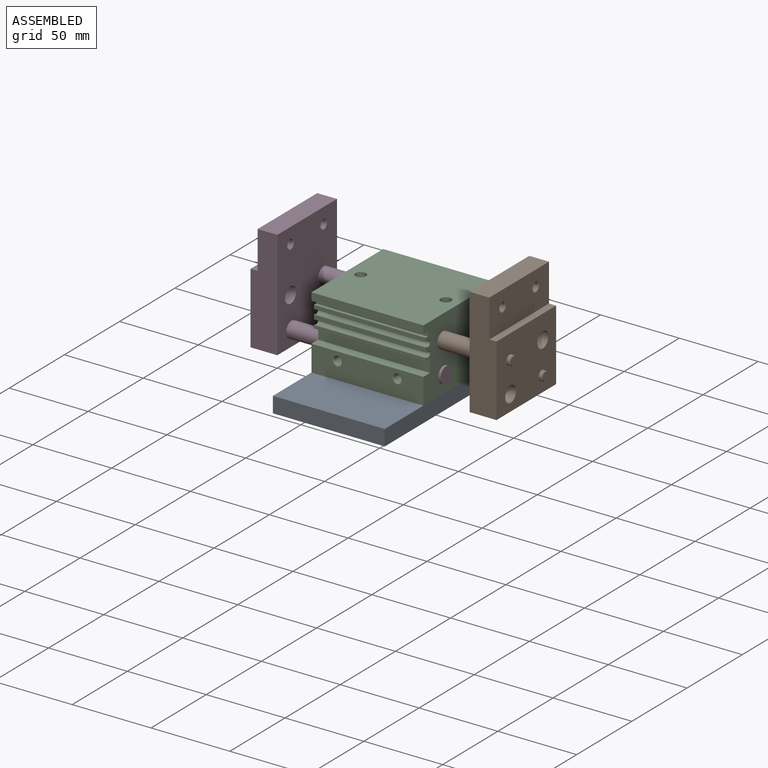
[diagram: assembled view]
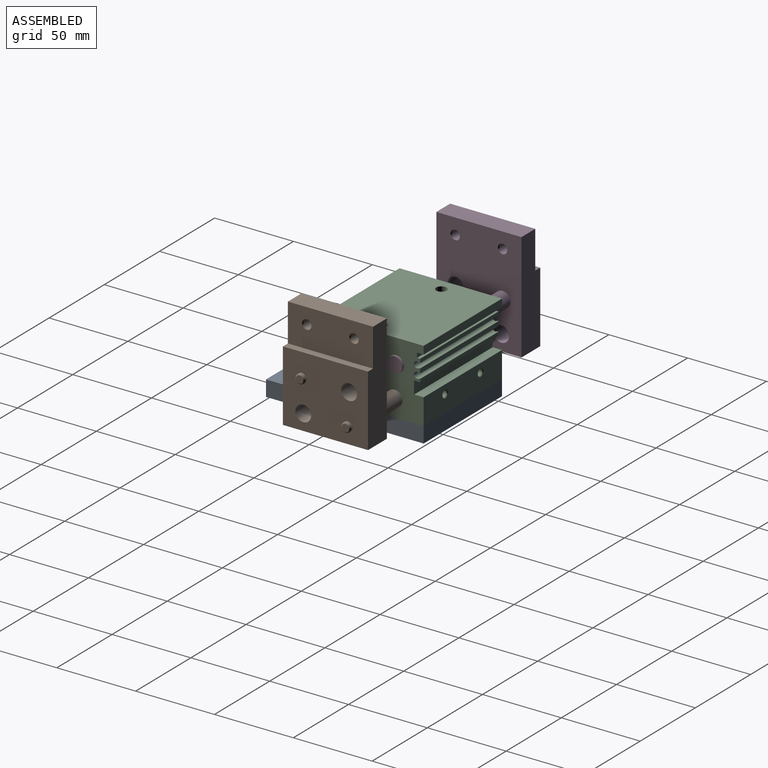
[diagram: assembled view, second angle]
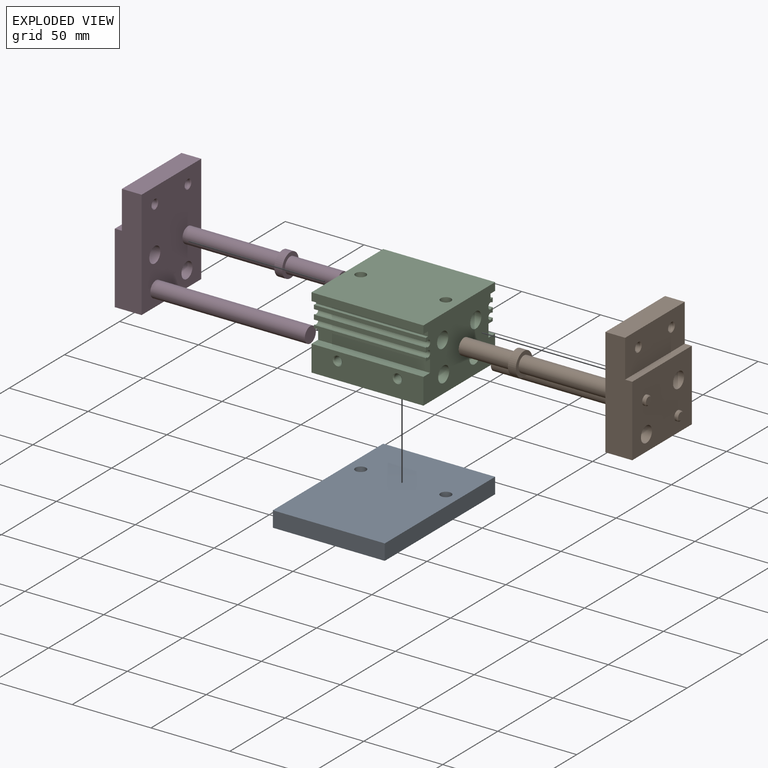
[diagram: exploded view]
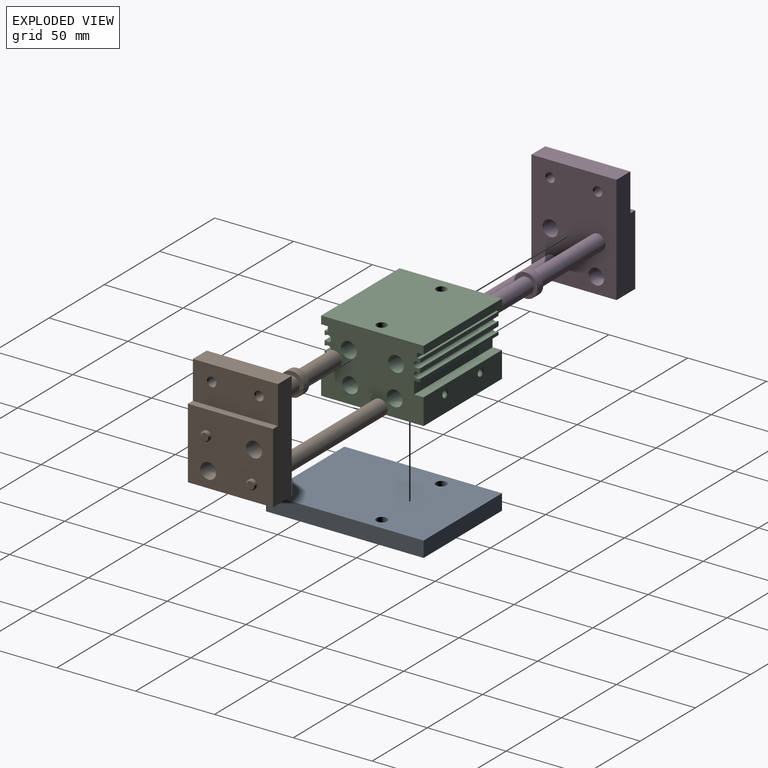
[diagram: exploded view, second angle]
ASSEMBLY  parts=4 mates=3
PART A: 8 faces, bbox 100x10x71 mm
  f0: plane 71x10mm, normal (-1,0,0), area 710mm2, adj f1,f3,f4,f5
  f1: plane 100x10mm, normal (0,0,-1), area 1000mm2, adj f0,f2,f4,f5
  f2: plane 71x10mm, normal (1,0,0), area 710mm2, adj f1,f3,f4,f5
  f3: plane 100x10mm, normal (0,0,1), area 1000mm2, adj f0,f2,f4,f5
  f4: plane 100x71mm, normal (0,-1,0), area 7027.4mm2, adj f0,f1,f2,f3,f6,f7
  f5: plane 100x71mm, normal (0,1,0), area 7027.4mm2, adj f0,f1,f2,f3,f6,f7
  f6: cylinder r=3.4mm len=10mm, axis (0,-1,0), area 213.6mm2, adj f4,f5
  f7: cylinder r=3.4mm len=10mm, axis (0,-1,0), area 213.6mm2, adj f4,f5
PART B: 30 faces, bbox 117x54x69 mm
  f0: plane 54x45mm, normal (1,0,0), area 2216.4mm2, adj f1,f4,f8,f9,f10,f11,f14,f17
  f1: cylinder r=3mm len=6mm, axis (-1,0,0), area 26.1mm2, adj f0,f3
  f2: cylinder r=5mm len=60mm, axis (-1,0,0), area 1885mm2, adj f5,f22
  f3: cone r=3mm half-angle=45deg, axis (-1,0,0), area 14.7mm2, adj f1,f26
  f4: plane 54x17mm, normal (0,0,-1), area 918mm2, adj f0,f5,f9,f10
  f5: plane 69x54mm, normal (-1,0,0), area 3355.3mm2, adj f2,f4,f6,f9,f10,f11,f13,f17
  f6: plane 54x12.5mm, normal (0,0,1), area 675mm2, adj f5,f7,f9,f10
  f7: plane 54x24mm, normal (1,0,0), area 1239.5mm2, adj f6,f8,f9,f10,f24,f29
  f8: plane 54x4.5mm, normal (0,0,1), area 243mm2, adj f0,f7,f9,f10
  f9: plane 69x17mm, normal (0,-1,0), area 1065mm2, adj f0,f4,f5,f6,f7,f8
  f10: plane 69x17mm, normal (0,1,0), area 1065mm2, adj f0,f4,f5,f6,f7,f8
  f11: cylinder r=5mm len=17mm, axis (-1,0,0), area 534.1mm2, adj f0,f5
  f12: plane 10x10mm, normal (-1,0,0), area 78.5mm2, adj f13
  f13: cylinder r=5mm len=98mm, axis (-1,0,0), area 3078.8mm2, adj f5,f12
  f14: cylinder r=3mm len=6mm, axis (-1,0,0), area 26.1mm2, adj f0,f15
  f15: cone r=3mm half-angle=45deg, axis (-1,0,0), area 14.7mm2, adj f14,f16
  f16: plane 4.77x4.77mm, normal (1,0,0), area 17.9mm2, adj f15
  f17: cylinder r=5mm len=17mm, axis (-1,0,0), area 534.1mm2, adj f0,f5
  f18: plane 10x10mm, normal (-1,0,0), area 78.5mm2, adj f19
  f19: cylinder r=5mm len=33mm, axis (-1,0,0), area 1036.7mm2, adj f18,f20
  f20: plane 15x15mm, normal (-1,0,0), area 98.2mm2, adj f19,f21
  f21: cylinder r=7.5mm len=15mm, axis (-1,0,0), area 235.6mm2, adj f20,f22
  f22: plane 15x15mm, normal (1,0,0), area 98.2mm2, adj f2,f21
  f23: cone r=3mm half-angle=45deg, axis (-1,0,0), area 13.1mm2, adj f5,f25
  f24: cone r=2.46mm half-angle=45deg, axis (1,0,0), area 13.1mm2, adj f7,f25
  f25: cylinder r=2.46mm len=11.42mm, axis (-1,0,0), area 176.4mm2, adj f23,f24
  f26: plane 4.77x4.77mm, normal (1,0,0), area 17.9mm2, adj f3
  f27: cone r=3mm half-angle=45deg, axis (-1,0,0), area 13.1mm2, adj f5,f28
  f28: cylinder r=2.46mm len=11.42mm, axis (-1,0,0), area 176.4mm2, adj f27,f29
  f29: cone r=2.46mm half-angle=45deg, axis (1,0,0), area 13.1mm2, adj f7,f28
PART C: 85 faces, bbox 71x65x46 mm
  f0: plane 15x15mm, normal (-1,0,0), area 98.2mm2, adj f5,f19
  f1: plane 71x0.74mm, normal (0,0,-1), area 52.3mm2, adj f2,f3,f13,f14
  f2: plane 71x2.45mm, normal (0,1,0), area 173.9mm2, adj f1,f12,f13,f14
  f3: cylinder r=2mm len=71mm, axis (1,0,0), area 640.4mm2, adj f1,f13,f14,f84
  f4: cylinder r=5mm len=11.5mm, axis (1,0,0), area 361.3mm2, adj f14,f18
  f5: cylinder r=5mm len=34.5mm, axis (1,0,0), area 1083.8mm2, adj f0,f13
  f6: cylinder r=5mm len=34.5mm, axis (1,0,0), area 1083.8mm2, adj f14,f15
  f7: cylinder r=5mm len=71mm, axis (1,0,0), area 2230.5mm2, adj f13,f14
  f8: cylinder r=5mm len=71mm, axis (1,0,0), area 2230.5mm2, adj f13,f14
  f9: plane 71x5mm, normal (0,1,0), area 355mm2, adj f10,f13,f14,f55
  f10: plane 71x4.2mm, normal (0,0,-1), area 298.2mm2, adj f9,f11,f13,f14
  f11: plane 71x3mm, normal (0,1,0), area 213mm2, adj f10,f12,f13,f14
  f12: plane 71x2mm, normal (0,0,1), area 142mm2, adj f2,f11,f13,f14
  f13: plane 65x46mm, normal (1,0,0), area 2442.2mm2, adj f1,f2,f3,f5,f7,f8,f9,f10
  f14: plane 65x46mm, normal (-1,0,0), area 2442.2mm2, adj f1,f2,f3,f4,f6,f7,f8,f9
  f15: plane 15x15mm, normal (1,0,0), area 98.2mm2, adj f6,f16
  f16: cylinder r=7.5mm len=25mm, axis (-1,0,0), area 1178.1mm2, adj f15,f17
  f17: plane 15x15mm, normal (-1,0,0), area 98.2mm2, adj f16,f57
  f18: plane 15x15mm, normal (1,0,0), area 98.2mm2, adj f4,f19
  f19: cylinder r=7.5mm len=25mm, axis (-1,0,0), area 1178.1mm2, adj f0,f18
  f20: cylinder r=3.3mm len=46mm, axis (0,0,-1), area 953.8mm2, adj f55,f58
  f21: cylinder r=3.3mm len=46mm, axis (0,0,-1), area 953.8mm2, adj f55,f58
  f22: cone r=3mm half-angle=45deg, axis (0,0,-1), area 13.1mm2, adj f23,f58
  f23: cylinder r=2.46mm len=11.46mm, axis (0,0,-1), area 177mm2, adj f22,f24
  f24: cone r=2.46mm half-angle=60deg, axis (0,0,-1), area 21.9mm2, adj f23
  f25: cone r=3mm half-angle=45deg, axis (0,0,-1), area 13.1mm2, adj f26,f58
  f26: cylinder r=2.46mm len=11.46mm, axis (0,0,-1), area 177mm2, adj f25,f27
  f27: cone r=2.46mm half-angle=60deg, axis (0,0,-1), area 21.9mm2, adj f26
  f28: cone r=3mm half-angle=45deg, axis (0,0,-1), area 13.1mm2, adj f29,f58
  f29: cylinder r=2.46mm len=11.46mm, axis (0,0,-1), area 177mm2, adj f28,f30
  f30: cone r=2.46mm half-angle=60deg, axis (0,0,-1), area 21.9mm2, adj f29
  f31: cone r=3mm half-angle=45deg, axis (0,0,-1), area 13.1mm2, adj f32,f58
  f32: cylinder r=2.46mm len=11.46mm, axis (0,0,-1), area 177mm2, adj f31,f33
  f33: cone r=2.46mm half-angle=60deg, axis (0,0,-1), area 21.9mm2, adj f32
  f34: cylinder r=2mm len=4mm, axis (0,0,1), area 50.3mm2, adj f35,f58
  f35: plane 4x4mm, normal (0,0,-1), area 12.6mm2, adj f34
  f36: plane 4x1mm, normal (1,0,0), area 4mm2, adj f37,f39,f40,f58
  f37: cylinder r=2mm len=4mm, axis (0,0,1), area 25.1mm2, adj f36,f38,f40,f58
  f38: plane 4x1mm, normal (-1,0,0), area 4mm2, adj f37,f39,f40,f58
  f39: cylinder r=2mm len=4mm, axis (0,0,1), area 25.1mm2, adj f36,f38,f40,f58
  f40: plane 5x4mm, normal (0,0,-1), area 16.6mm2, adj f36,f37,f38,f39
  f41: cylinder r=13.5mm len=27mm, axis (0,0,1), area 127.2mm2, adj f42,f58
  f42: plane 27x27mm, normal (0,0,-1), area 572.6mm2, adj f41
  f43: cone r=2.5mm half-angle=45deg, axis (0,1,0), area 8.8mm2, adj f44,f59
  f44: cylinder r=2.07mm len=4.57mm, axis (0,1,0), area 59.3mm2, adj f43,f45
  f45: cone r=2.07mm half-angle=60deg, axis (0,1,0), area 15.5mm2, adj f44
  f46: cone r=2.5mm half-angle=45deg, axis (0,1,0), area 8.8mm2, adj f47,f59
  f47: cylinder r=2.07mm len=4.57mm, axis (0,1,0), area 59.3mm2, adj f46,f48
  f48: cone r=2.07mm half-angle=60deg, axis (0,1,0), area 15.5mm2, adj f47
  f49: cone r=866.03mm half-angle=60deg, axis (0,-1,0), area 21.9mm2, adj f50
  f50: cylinder r=2.46mm len=6.46mm, axis (0,1,0), area 99.8mm2, adj f49,f51
  f51: cone r=2.46mm half-angle=45deg, axis (0,-1,0), area 13.1mm2, adj f50,f60
  f52: cone r=866.03mm half-angle=60deg, axis (0,-1,0), area 21.9mm2, adj f53
  f53: cylinder r=2.46mm len=6.46mm, axis (0,1,0), area 99.8mm2, adj f52,f54
  f54: cone r=2.46mm half-angle=45deg, axis (0,-1,0), area 13.1mm2, adj f53,f60
  f55: plane 71x65mm, normal (0,0,1), area 4546.6mm2, adj f9,f13,f14,f20,f21,f56
  f56: plane 71x5mm, normal (0,-1,0), area 355mm2, adj f13,f14,f55,f75
  f57: cylinder r=5mm len=11.5mm, axis (1,0,0), area 361.3mm2, adj f13,f17
  f58: plane 71x65mm, normal (0,0,-1), area 3831.8mm2, adj f13,f14,f20,f21,f22,f25,f28,f31
  f59: plane 71x16.5mm, normal (0,1,0), area 1132.2mm2, adj f13,f14,f43,f46,f58,f76
  f60: plane 71x16.5mm, normal (0,-1,0), area 1115mm2, adj f13,f14,f51,f54,f58,f61
  f61: plane 71x6mm, normal (0,0,1), area 426mm2, adj f13,f14,f60,f62
  f62: plane 71x8mm, normal (0,-1,0), area 568mm2, adj f13,f14,f61,f63
  f63: plane 71x3.8mm, normal (0,0,-1), area 269.8mm2, adj f13,f14,f62,f64
  f64: plane 71x1.95mm, normal (0,-1,0), area 138.4mm2, adj f13,f14,f63,f65
  f65: plane 71x0.74mm, normal (0,0,1), area 52.3mm2, adj f13,f14,f64,f66
  f66: cylinder r=2mm len=71mm, axis (1,0,0), area 640.4mm2, adj f13,f14,f65,f67
  f67: plane 71x0.74mm, normal (0,0,-1), area 52.3mm2, adj f13,f14,f66,f68
  f68: plane 71x2.9mm, normal (0,-1,0), area 205.9mm2, adj f13,f14,f67,f69
  f69: plane 71x0.74mm, normal (0,0,1), area 52.3mm2, adj f13,f14,f68,f70
  f70: cylinder r=2mm len=71mm, axis (1,0,0), area 640.4mm2, adj f13,f14,f69,f71
  f71: plane 71x0.74mm, normal (0,0,-1), area 52.3mm2, adj f13,f14,f70,f72
  f72: plane 71x2.45mm, normal (0,-1,0), area 173.9mm2, adj f13,f14,f71,f73
  f73: plane 71x2mm, normal (0,0,1), area 142mm2, adj f13,f14,f72,f74
  f74: plane 71x3mm, normal (0,-1,0), area 213mm2, adj f13,f14,f73,f75
  f75: plane 71x4.2mm, normal (0,0,-1), area 298.2mm2, adj f13,f14,f56,f74
  f76: plane 71x6mm, normal (0,0,1), area 426mm2, adj f13,f14,f59,f77
  f77: plane 71x8mm, normal (0,1,0), area 568mm2, adj f13,f14,f76,f78
  f78: plane 71x3.8mm, normal (0,0,-1), area 269.8mm2, adj f13,f14,f77,f79
  f79: plane 71x1.95mm, normal (0,1,0), area 138.4mm2, adj f13,f14,f78,f80
  f80: plane 71x0.74mm, normal (0,0,1), area 52.3mm2, adj f13,f14,f79,f81
  f81: cylinder r=2mm len=71mm, axis (1,0,0), area 640.4mm2, adj f13,f14,f80,f82
  f82: plane 71x0.74mm, normal (0,0,-1), area 52.3mm2, adj f13,f14,f81,f83
  f83: plane 71x2.9mm, normal (0,1,0), area 205.9mm2, adj f13,f14,f82,f84
  f84: plane 71x0.74mm, normal (0,0,1), area 52.3mm2, adj f3,f13,f14,f83
PART D: same geometry as B
PLACE A rot(axis=(-0.58,0.58,-0.58),120deg) t=(-35.5,32.5,-33)mm
PLACE B t=(61,0,0)mm
PLACE C at identity
PLACE D rot(axis=(0,0,1),180deg) t=(-61,0,0)mm
MATE fastened A.f6 <-> C.f20  axis (0,0,1) through (-27,0,-23)mm
MATE fastened D.f1 <-> C.f6  axis (1,0,0) through (-61,15,8)mm
MATE fastened B.f13 <-> C.f8  axis (-1,0,0) through (61,14.1,-12)mm
